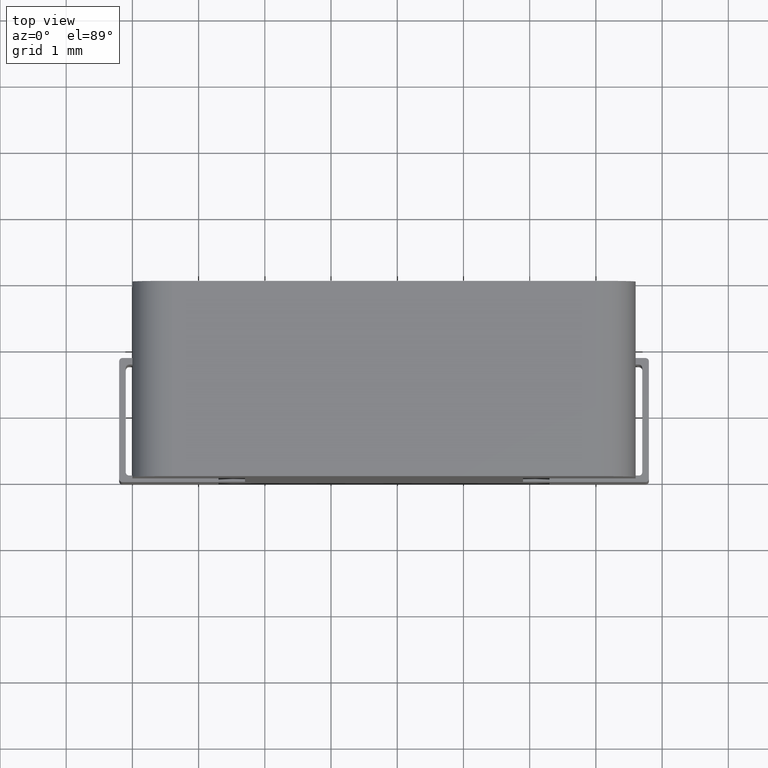
[diagram: clean part render]
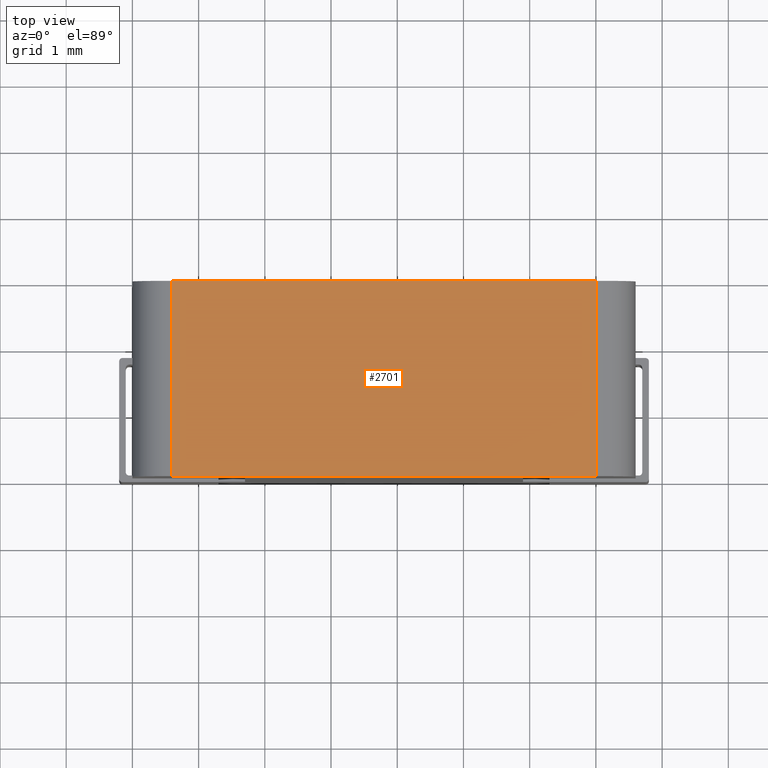
[diagram: same view with one face highlighted and labeled with its STEP entity id]
A machine part, top view. The second image highlights one B-rep face of the part: STEP entity #2701.
In plain terms, the highlighted planar face has unit normal (0, 0, -1).
Its self-contained STEP definition (entity closure, byte-faithful):
#28 = CARTESIAN_POINT ( 'NONE',  ( 7.000099999999998900, 0.0000000000000000000, 0.0000000000000000000 ) ) ;
#187 = ORIENTED_EDGE ( 'NONE', *, *, #2472, .T. ) ;
#224 = CARTESIAN_POINT ( 'NONE',  ( 0.5998999999999997700, 2.950000000000000200, 0.0000000000000000000 ) ) ;
#553 = CARTESIAN_POINT ( 'NONE',  ( 7.000099999999998900, 2.950000000000000200, 0.0000000000000000000 ) ) ;
#569 = DIRECTION ( 'NONE',  ( 0.0000000000000000000, -1.000000000000000000, 0.0000000000000000000 ) ) ;
#616 = DIRECTION ( 'NONE',  ( -1.000000000000000000, 0.0000000000000000000, -0.0000000000000000000 ) ) ;
#634 = CARTESIAN_POINT ( 'NONE',  ( 0.5998999999999997700, 0.0000000000000000000, 0.0000000000000000000 ) ) ;
#648 = VECTOR ( 'NONE', #825, 1000.000000000000000 ) ;
#691 = LINE ( 'NONE', #3422, #1440 ) ;
#816 = EDGE_CURVE ( 'NONE', #3727, #1559, #691, .T. ) ;
#825 = DIRECTION ( 'NONE',  ( 1.000000000000000000, 0.0000000000000000000, 0.0000000000000000000 ) ) ;
#948 = CARTESIAN_POINT ( 'NONE',  ( 0.0000000000000000000, 2.950000000000000200, 0.0000000000000000000 ) ) ;
#1001 = CARTESIAN_POINT ( 'NONE',  ( 0.0000000000000000000, 2.950000000000000200, 0.0000000000000000000 ) ) ;
#1067 = EDGE_CURVE ( 'NONE', #4006, #3733, #3772, .T. ) ;
#1270 = VECTOR ( 'NONE', #3545, 1000.000000000000000 ) ;
#1410 = LINE ( 'NONE', #3970, #648 ) ;
#1440 = VECTOR ( 'NONE', #2785, 1000.000000000000000 ) ;
#1544 = DIRECTION ( 'NONE',  ( 0.0000000000000000000, 0.0000000000000000000, -1.000000000000000000 ) ) ;
#1559 = VERTEX_POINT ( 'NONE', #553 ) ;
#1681 = ORIENTED_EDGE ( 'NONE', *, *, #1855, .F. ) ;
#1855 = EDGE_CURVE ( 'NONE', #4006, #1559, #2096, .T. ) ;
#2096 = LINE ( 'NONE', #1001, #1270 ) ;
#2260 = VECTOR ( 'NONE', #569, 1000.000000000000000 ) ;
#2332 = FACE_OUTER_BOUND ( 'NONE', #3143, .T. ) ;
#2472 = EDGE_CURVE ( 'NONE', #3733, #3727, #1410, .T. ) ;
#2498 = ORIENTED_EDGE ( 'NONE', *, *, #1067, .T. ) ;
#2701 = ADVANCED_FACE ( 'NONE', ( #2332 ), #3162, .F. ) ;
#2777 = ORIENTED_EDGE ( 'NONE', *, *, #816, .T. ) ;
#2785 = DIRECTION ( 'NONE',  ( -0.0000000000000000000, 1.000000000000000000, -0.0000000000000000000 ) ) ;
#2901 = AXIS2_PLACEMENT_3D ( 'NONE', #948, #1544, #616 ) ;
#3143 = EDGE_LOOP ( 'NONE', ( #1681, #2498, #187, #2777 ) ) ;
#3162 = PLANE ( 'NONE',  #2901 ) ;
#3422 = CARTESIAN_POINT ( 'NONE',  ( 7.000100000000000700, 2.950000000000000200, 0.0000000000000000000 ) ) ;
#3545 = DIRECTION ( 'NONE',  ( 1.000000000000000000, 0.0000000000000000000, 0.0000000000000000000 ) ) ;
#3727 = VERTEX_POINT ( 'NONE', #28 ) ;
#3733 = VERTEX_POINT ( 'NONE', #634 ) ;
#3772 = LINE ( 'NONE', #4070, #2260 ) ;
#3970 = CARTESIAN_POINT ( 'NONE',  ( 0.0000000000000000000, 0.0000000000000000000, 0.0000000000000000000 ) ) ;
#4006 = VERTEX_POINT ( 'NONE', #224 ) ;
#4070 = CARTESIAN_POINT ( 'NONE',  ( 0.5998999999999999900, 0.0000000000000000000, 0.0000000000000000000 ) ) ;